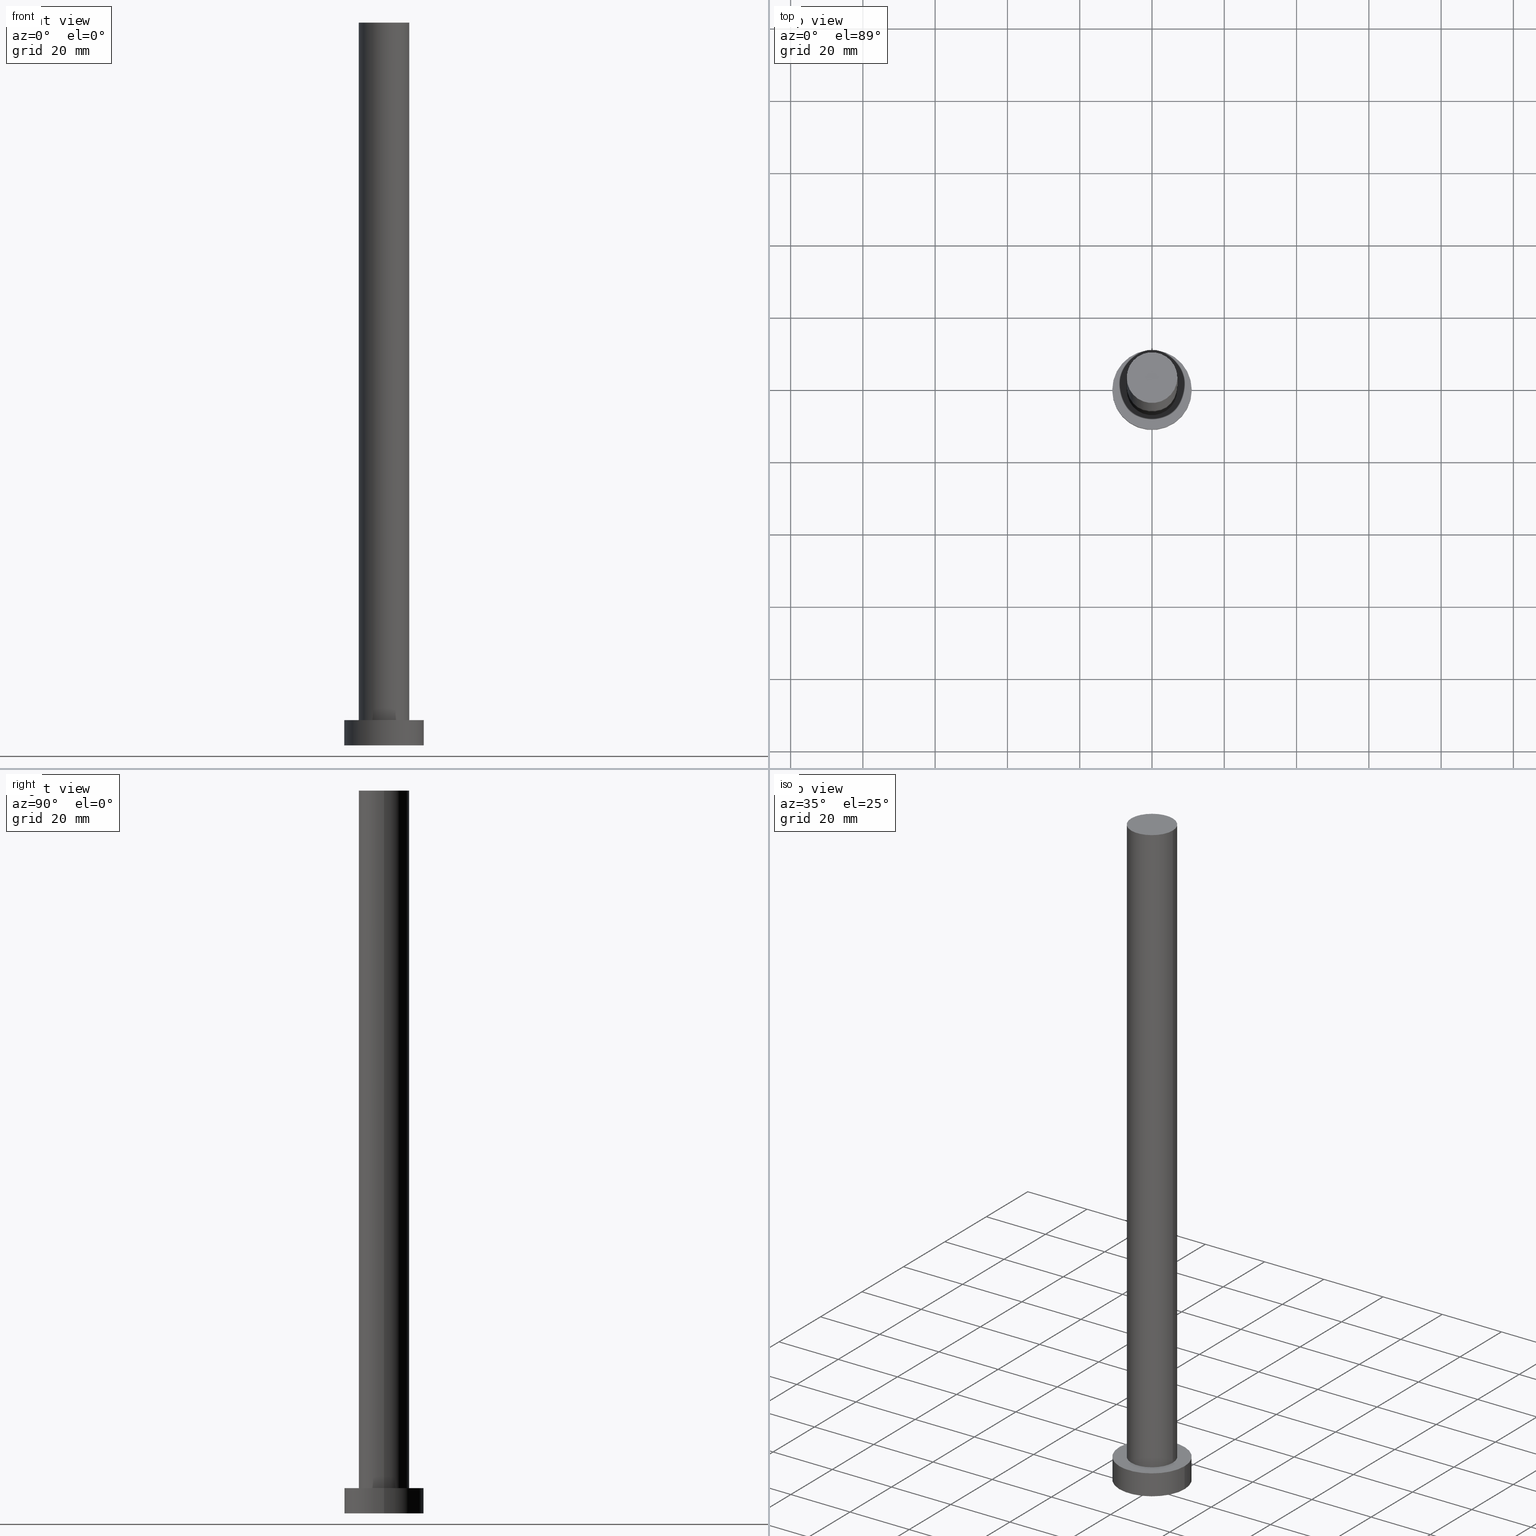
[diagram: canonical four-view strip — front | top / right | iso, engineering-drawing reading convention]
A machine part, canonical four-view strip (front | top / right | iso — engineering-drawing reading convention). The complete STEP part file that produces these views, byte-faithful:
ISO-10303-21;
HEADER;
FILE_DESCRIPTION (( 'STEP AP203' ),
    '1' );
FILE_NAME ('63ed.STEP',
    '2023-02-13T09:16:48',
    ( '' ),
    ( '' ),
    'SwSTEP 2.0',
    'SolidWorks 2019',
    '' );
FILE_SCHEMA (( 'CONFIG_CONTROL_DESIGN' ));
ENDSEC;

DATA;
#1 = APPROVAL_ROLE ( '' ) ;
#2 = EDGE_CURVE ( 'NONE', #127, #113, #91, .T. ) ;
#3 = PERSON_AND_ORGANIZATION ( #218, #195 ) ;
#4 = APPROVAL_STATUS ( 'not_yet_approved' ) ;
#5 = CALENDAR_DATE ( 2023, 13, 2 ) ;
#6 = CC_DESIGN_APPROVAL ( #55, ( #226 ) ) ;
#7 = CARTESIAN_POINT ( 'NONE',  ( 0.000000000000000000, 0.000000000000000000, 200.0000000000000000 ) ) ;
#8 = VERTEX_POINT ( 'NONE', #11 ) ;
#9 = PRODUCT_RELATED_PRODUCT_CATEGORY ( 'detail', '', ( #234 ) ) ;
#10 = CIRCLE ( 'NONE', #223, 7.000000000000000000 ) ;
#11 = CARTESIAN_POINT ( 'NONE',  ( 7.000000000000000000, 8.572527594031473190E-16, 7.000000000000000000 ) ) ;
#12 = ORIENTED_EDGE ( 'NONE', *, *, #254, .F. ) ;
#13 = PLANE ( 'NONE',  #202 ) ;
#14 = EDGE_CURVE ( 'NONE', #206, #252, #129, .T. ) ;
#15 = ORIENTED_EDGE ( 'NONE', *, *, #171, .F. ) ;
#16 = VECTOR ( 'NONE', #152, 1000.000000000000000 ) ;
#17 = DIRECTION ( 'NONE',  ( -1.000000000000000000, 0.000000000000000000, 0.000000000000000000 ) ) ;
#18 = MECHANICAL_CONTEXT ( 'NONE', #229, 'mechanical' ) ;
#19 = AXIS2_PLACEMENT_3D ( 'NONE', #251, #114, #109 ) ;
#20 = MANIFOLD_SOLID_BREP ( 'P�idat vysunut�m3', #31 ) ;
#21 = EDGE_CURVE ( 'NONE', #252, #32, #111, .T. ) ;
#22 = APPROVAL_DATE_TIME ( #54, #77 ) ;
#23 = CALENDAR_DATE ( 2023, 13, 2 ) ;
#24 = EDGE_LOOP ( 'NONE', ( #34, #156 ) ) ;
#25 = ADVANCED_FACE ( 'NONE', ( #230 ), #13, .F. ) ;
#26 = FACE_OUTER_BOUND ( 'NONE', #248, .T. ) ;
#27 = ORIENTED_EDGE ( 'NONE', *, *, #254, .T. ) ;
#28 = DIRECTION ( 'NONE',  ( 0.000000000000000000, 0.000000000000000000, 1.000000000000000000 ) ) ;
#29 = ORIENTED_EDGE ( 'NONE', *, *, #21, .F. ) ;
#30 = DIRECTION ( 'NONE',  ( 1.000000000000000000, 0.000000000000000000, 0.000000000000000000 ) ) ;
#31 = CLOSED_SHELL ( 'NONE', ( #134, #85, #243, #104, #25, #51, #247 ) ) ;
#32 = VERTEX_POINT ( 'NONE', #166 ) ;
#33 =( NAMED_UNIT ( * ) PLANE_ANGLE_UNIT ( ) SI_UNIT ( $, .RADIAN. ) );
#34 = ORIENTED_EDGE ( 'NONE', *, *, #167, .T. ) ;
#35 = CARTESIAN_POINT ( 'NONE',  ( 0.000000000000000000, 0.000000000000000000, 200.0000000000000000 ) ) ;
#36 = LOCAL_TIME ( 10, 16, 48.00000000000000000, #215 ) ;
#37 = APPROVAL_DATE_TIME ( #164, #64 ) ;
#38 = DATE_TIME_ROLE ( 'creation_date' ) ;
#39 = CC_DESIGN_PERSON_AND_ORGANIZATION_ASSIGNMENT ( #3, #76, ( #226 ) ) ;
#40 = LOCAL_TIME ( 10, 16, 48.00000000000000000, #112 ) ;
#41 = EDGE_CURVE ( 'NONE', #32, #53, #43, .T. ) ;
#42 = DIRECTION ( 'NONE',  ( -1.000000000000000000, 0.000000000000000000, 0.000000000000000000 ) ) ;
#43 = CIRCLE ( 'NONE', #59, 11.00000000000000000 ) ;
#44 = DIRECTION ( 'NONE',  ( 1.000000000000000000, 0.000000000000000000, 0.000000000000000000 ) ) ;
#45 = APPROVAL_PERSON_ORGANIZATION ( #49, #77, #130 ) ;
#46 = CARTESIAN_POINT ( 'NONE',  ( -11.00000000000000000, 0.000000000000000000, 7.000000000000000000 ) ) ;
#47 = APPLICATION_PROTOCOL_DEFINITION ( 'international standard', 'config_control_design', 1994, #229 ) ;
#48 = ORIENTED_EDGE ( 'NONE', *, *, #153, .T. ) ;
#49 = PERSON_AND_ORGANIZATION ( #218, #195 ) ;
#50 = VECTOR ( 'NONE', #132, 1000.000000000000000 ) ;
#51 = ADVANCED_FACE ( 'NONE', ( #58 ), #101, .T. ) ;
#52 = CIRCLE ( 'NONE', #95, 7.000000000000000000 ) ;
#53 = VERTEX_POINT ( 'NONE', #122 ) ;
#54 = DATE_AND_TIME ( #196, #40 ) ;
#55 = APPROVAL ( #4, 'NEUR�EN�' ) ;
#56 = PERSON_AND_ORGANIZATION_ROLE ( 'design_supplier' ) ;
#57 = APPROVAL_STATUS ( 'not_yet_approved' ) ;
#58 = FACE_OUTER_BOUND ( 'NONE', #98, .T. ) ;
#59 = AXIS2_PLACEMENT_3D ( 'NONE', #169, #181, #44 ) ;
#60 = DIRECTION ( 'NONE',  ( 1.000000000000000000, 0.000000000000000000, 0.000000000000000000 ) ) ;
#61 =( GEOMETRIC_REPRESENTATION_CONTEXT ( 3 ) GLOBAL_UNCERTAINTY_ASSIGNED_CONTEXT ( ( #107 ) ) GLOBAL_UNIT_ASSIGNED_CONTEXT ( ( #227, #33, #191 ) ) REPRESENTATION_CONTEXT ( 'NONE', 'WORKASPACE' ) );
#62 = FACE_OUTER_BOUND ( 'NONE', #120, .T. ) ;
#63 = CYLINDRICAL_SURFACE ( 'NONE', #149, 7.000000000000000000 ) ;
#64 = APPROVAL ( #57, 'NEUR�EN�' ) ;
#65 = AXIS2_PLACEMENT_3D ( 'NONE', #246, #211, #17 ) ;
#66 = LOCAL_TIME ( 10, 16, 48.00000000000000000, #214 ) ;
#67 = PLANE ( 'NONE',  #140 ) ;
#68 = ORIENTED_EDGE ( 'NONE', *, *, #225, .T. ) ;
#69 = ORIENTED_EDGE ( 'NONE', *, *, #2, .T. ) ;
#70 = LINE ( 'NONE', #86, #100 ) ;
#71 = ORIENTED_EDGE ( 'NONE', *, *, #167, .F. ) ;
#72 = DIRECTION ( 'NONE',  ( 0.000000000000000000, 0.000000000000000000, 1.000000000000000000 ) ) ;
#73 = PERSON_AND_ORGANIZATION_ROLE ( 'design_owner' ) ;
#74 = DIRECTION ( 'NONE',  ( 0.000000000000000000, 0.000000000000000000, 1.000000000000000000 ) ) ;
#75 = ORIENTED_EDGE ( 'NONE', *, *, #186, .F. ) ;
#76 = PERSON_AND_ORGANIZATION_ROLE ( 'creator' ) ;
#77 = APPROVAL ( #174, 'NEUR�EN�' ) ;
#78 = CALENDAR_DATE ( 2023, 13, 2 ) ;
#79 = PERSON_AND_ORGANIZATION ( #218, #195 ) ;
#80 = CC_DESIGN_APPROVAL ( #77, ( #124 ) ) ;
#81 = DIRECTION ( 'NONE',  ( -1.000000000000000000, 0.000000000000000000, 0.000000000000000000 ) ) ;
#82 = ORIENTED_EDGE ( 'NONE', *, *, #116, .F. ) ;
#83 = CARTESIAN_POINT ( 'NONE',  ( -7.000000000000000000, 0.000000000000000000, 7.000000000000000000 ) ) ;
#84 = DIRECTION ( 'NONE',  ( -0.000000000000000000, -0.000000000000000000, -1.000000000000000000 ) ) ;
#85 = ADVANCED_FACE ( 'NONE', ( #26 ), #200, .T. ) ;
#86 = CARTESIAN_POINT ( 'NONE',  ( -11.00000000000000000, 0.000000000000000000, 7.000000000000000000 ) ) ;
#87 = ORIENTED_EDGE ( 'NONE', *, *, #163, .F. ) ;
#88 = LINE ( 'NONE', #207, #16 ) ;
#89 = CC_DESIGN_SECURITY_CLASSIFICATION ( #180, ( #226 ) ) ;
#90 = DIRECTION ( 'NONE',  ( -0.000000000000000000, -0.000000000000000000, -1.000000000000000000 ) ) ;
#91 = LINE ( 'NONE', #188, #50 ) ;
#92 = DIRECTION ( 'NONE',  ( 1.000000000000000000, 0.000000000000000000, 0.000000000000000000 ) ) ;
#93 = EDGE_LOOP ( 'NONE', ( #228, #82 ) ) ;
#94 = CARTESIAN_POINT ( 'NONE',  ( 7.000000000000000000, 8.572527594031473190E-16, 200.0000000000000000 ) ) ;
#95 = AXIS2_PLACEMENT_3D ( 'NONE', #128, #209, #30 ) ;
#96 = PRODUCT_DEFINITION_SHAPE ( 'NONE', 'NONE',  #124 ) ;
#97 = VECTOR ( 'NONE', #90, 1000.000000000000000 ) ;
#98 = EDGE_LOOP ( 'NONE', ( #136, #71, #69, #48 ) ) ;
#99 = PERSON_AND_ORGANIZATION ( #218, #195 ) ;
#100 = VECTOR ( 'NONE', #232, 1000.000000000000000 ) ;
#101 = CYLINDRICAL_SURFACE ( 'NONE', #182, 7.000000000000000000 ) ;
#102 = CC_DESIGN_APPROVAL ( #64, ( #180 ) ) ;
#103 = DIRECTION ( 'NONE',  ( 1.000000000000000000, 0.000000000000000000, 0.000000000000000000 ) ) ;
#104 = ADVANCED_FACE ( 'NONE', ( #141, #183 ), #165, .T. ) ;
#105 = DIRECTION ( 'NONE',  ( 0.000000000000000000, 0.000000000000000000, 1.000000000000000000 ) ) ;
#106 = ORIENTED_EDGE ( 'NONE', *, *, #163, .T. ) ;
#107 = UNCERTAINTY_MEASURE_WITH_UNIT (LENGTH_MEASURE( 1.000000000000000082E-05 ), #227, 'distance_accuracy_value', 'NONE');
#108 = ORIENTED_EDGE ( 'NONE', *, *, #14, .T. ) ;
#109 = DIRECTION ( 'NONE',  ( 1.000000000000000000, 0.000000000000000000, 0.000000000000000000 ) ) ;
#110 = CC_DESIGN_DATE_AND_TIME_ASSIGNMENT ( #158, #138, ( #180 ) ) ;
#111 = LINE ( 'NONE', #193, #97 ) ;
#112 = COORDINATED_UNIVERSAL_TIME_OFFSET ( 1, 0, .AHEAD. ) ;
#113 = VERTEX_POINT ( 'NONE', #83 ) ;
#114 = DIRECTION ( 'NONE',  ( 0.000000000000000000, 0.000000000000000000, 1.000000000000000000 ) ) ;
#115 = AXIS2_PLACEMENT_3D ( 'NONE', #123, #201, #103 ) ;
#116 = EDGE_CURVE ( 'NONE', #8, #113, #208, .T. ) ;
#117 = LOCAL_TIME ( 10, 16, 48.00000000000000000, #216 ) ;
#118 = APPROVAL_DATE_TIME ( #239, #55 ) ;
#119 = PERSON_AND_ORGANIZATION_ROLE ( 'classification_officer' ) ;
#120 = EDGE_LOOP ( 'NONE', ( #15, #68, #150, #159 ) ) ;
#121 = CARTESIAN_POINT ( 'NONE',  ( 0.000000000000000000, 0.000000000000000000, 7.000000000000000000 ) ) ;
#122 = CARTESIAN_POINT ( 'NONE',  ( -11.00000000000000000, 0.000000000000000000, 0.000000000000000000 ) ) ;
#123 = CARTESIAN_POINT ( 'NONE',  ( 0.000000000000000000, 0.000000000000000000, 7.000000000000000000 ) ) ;
#124 = PRODUCT_DEFINITION ( 'NEZN�M�', '', #226, #145 ) ;
#125 = CARTESIAN_POINT ( 'NONE',  ( 0.000000000000000000, 0.000000000000000000, 7.000000000000000000 ) ) ;
#126 = AXIS2_PLACEMENT_3D ( 'NONE', #233, #74, #135 ) ;
#127 = VERTEX_POINT ( 'NONE', #168 ) ;
#128 = CARTESIAN_POINT ( 'NONE',  ( 0.000000000000000000, 0.000000000000000000, 200.0000000000000000 ) ) ;
#129 = CIRCLE ( 'NONE', #176, 11.00000000000000000 ) ;
#130 = APPROVAL_ROLE ( '' ) ;
#131 = DIRECTION ( 'NONE',  ( 1.000000000000000000, 0.000000000000000000, 0.000000000000000000 ) ) ;
#132 = DIRECTION ( 'NONE',  ( -0.000000000000000000, -0.000000000000000000, -1.000000000000000000 ) ) ;
#133 = CYLINDRICAL_SURFACE ( 'NONE', #65, 11.00000000000000000 ) ;
#134 = ADVANCED_FACE ( 'NONE', ( #62 ), #63, .T. ) ;
#135 = DIRECTION ( 'NONE',  ( 1.000000000000000000, 0.000000000000000000, 0.000000000000000000 ) ) ;
#136 = ORIENTED_EDGE ( 'NONE', *, *, #225, .F. ) ;
#137 = APPROVAL_ROLE ( '' ) ;
#138 = DATE_TIME_ROLE ( 'classification_date' ) ;
#139 = COORDINATED_UNIVERSAL_TIME_OFFSET ( 1, 0, .AHEAD. ) ;
#140 = AXIS2_PLACEMENT_3D ( 'NONE', #253, #72, #146 ) ;
#141 = FACE_BOUND ( 'NONE', #93, .T. ) ;
#142 = DIRECTION ( 'NONE',  ( -0.000000000000000000, -0.000000000000000000, -1.000000000000000000 ) ) ;
#143 = CARTESIAN_POINT ( 'NONE',  ( 0.000000000000000000, 0.000000000000000000, 200.0000000000000000 ) ) ;
#144 = CIRCLE ( 'NONE', #212, 11.00000000000000000 ) ;
#145 = DESIGN_CONTEXT ( 'detailed design', #240, 'design' ) ;
#146 = DIRECTION ( 'NONE',  ( 1.000000000000000000, 0.000000000000000000, -0.000000000000000000 ) ) ;
#147 = CARTESIAN_POINT ( 'NONE',  ( 11.00000000000000000, 1.347111479062088405E-15, 7.000000000000000000 ) ) ;
#148 = EDGE_LOOP ( 'NONE', ( #75, #155 ) ) ;
#149 = AXIS2_PLACEMENT_3D ( 'NONE', #143, #142, #42 ) ;
#150 = ORIENTED_EDGE ( 'NONE', *, *, #116, .T. ) ;
#151 = CARTESIAN_POINT ( 'NONE',  ( 0.000000000000000000, 0.000000000000000000, 0.000000000000000000 ) ) ;
#152 = DIRECTION ( 'NONE',  ( -0.000000000000000000, -0.000000000000000000, -1.000000000000000000 ) ) ;
#153 = EDGE_CURVE ( 'NONE', #113, #8, #217, .T. ) ;
#154 = DIRECTION ( 'NONE',  ( 0.000000000000000000, 0.000000000000000000, 1.000000000000000000 ) ) ;
#155 = ORIENTED_EDGE ( 'NONE', *, *, #41, .F. ) ;
#156 = ORIENTED_EDGE ( 'NONE', *, *, #171, .T. ) ;
#157 = CC_DESIGN_DATE_AND_TIME_ASSIGNMENT ( #221, #38, ( #124 ) ) ;
#158 = DATE_AND_TIME ( #5, #66 ) ;
#159 = ORIENTED_EDGE ( 'NONE', *, *, #2, .F. ) ;
#160 = PERSON_AND_ORGANIZATION_ROLE ( 'creator' ) ;
#161 = LOCAL_TIME ( 10, 16, 48.00000000000000000, #139 ) ;
#162 = CALENDAR_DATE ( 2023, 13, 2 ) ;
#163 = EDGE_CURVE ( 'NONE', #252, #206, #144, .T. ) ;
#164 = DATE_AND_TIME ( #162, #161 ) ;
#165 = PLANE ( 'NONE',  #197 ) ;
#166 = CARTESIAN_POINT ( 'NONE',  ( 11.00000000000000000, 1.347111479062088405E-15, 0.000000000000000000 ) ) ;
#167 = EDGE_CURVE ( 'NONE', #127, #245, #52, .T. ) ;
#168 = CARTESIAN_POINT ( 'NONE',  ( -7.000000000000000000, 0.000000000000000000, 200.0000000000000000 ) ) ;
#169 = CARTESIAN_POINT ( 'NONE',  ( 0.000000000000000000, 0.000000000000000000, 0.000000000000000000 ) ) ;
#170 = EDGE_LOOP ( 'NONE', ( #29, #175, #27, #185 ) ) ;
#171 = EDGE_CURVE ( 'NONE', #245, #127, #10, .T. ) ;
#172 = DIRECTION ( 'NONE',  ( 0.000000000000000000, 0.000000000000000000, 1.000000000000000000 ) ) ;
#173 = DIRECTION ( 'NONE',  ( 0.000000000000000000, 0.000000000000000000, 1.000000000000000000 ) ) ;
#174 = APPROVAL_STATUS ( 'not_yet_approved' ) ;
#175 = ORIENTED_EDGE ( 'NONE', *, *, #14, .F. ) ;
#176 = AXIS2_PLACEMENT_3D ( 'NONE', #190, #172, #131 ) ;
#177 = CIRCLE ( 'NONE', #19, 11.00000000000000000 ) ;
#178 = PERSON_AND_ORGANIZATION ( #218, #195 ) ;
#179 = APPROVAL_PERSON_ORGANIZATION ( #178, #55, #137 ) ;
#180 = SECURITY_CLASSIFICATION ( '', '', #219 ) ;
#181 = DIRECTION ( 'NONE',  ( 0.000000000000000000, 0.000000000000000000, 1.000000000000000000 ) ) ;
#182 = AXIS2_PLACEMENT_3D ( 'NONE', #7, #198, #222 ) ;
#183 = FACE_OUTER_BOUND ( 'NONE', #250, .T. ) ;
#184 = DIRECTION ( 'NONE',  ( 1.000000000000000000, 0.000000000000000000, 0.000000000000000000 ) ) ;
#185 = ORIENTED_EDGE ( 'NONE', *, *, #186, .T. ) ;
#186 = EDGE_CURVE ( 'NONE', #53, #32, #177, .T. ) ;
#187 = FACE_OUTER_BOUND ( 'NONE', #24, .T. ) ;
#188 = CARTESIAN_POINT ( 'NONE',  ( -7.000000000000000000, 0.000000000000000000, 200.0000000000000000 ) ) ;
#189 = FACE_OUTER_BOUND ( 'NONE', #170, .T. ) ;
#190 = CARTESIAN_POINT ( 'NONE',  ( 0.000000000000000000, 0.000000000000000000, 7.000000000000000000 ) ) ;
#191 =( NAMED_UNIT ( * ) SI_UNIT ( $, .STERADIAN. ) SOLID_ANGLE_UNIT ( ) );
#192 = CC_DESIGN_PERSON_AND_ORGANIZATION_ASSIGNMENT ( #99, #119, ( #180 ) ) ;
#193 = CARTESIAN_POINT ( 'NONE',  ( 11.00000000000000000, 1.347111479062088405E-15, 7.000000000000000000 ) ) ;
#194 = AXIS2_PLACEMENT_3D ( 'NONE', #242, #28, #60 ) ;
#195 = ORGANIZATION ( 'NEUR�EN�', 'NEUR�EN�', '' ) ;
#196 = CALENDAR_DATE ( 2023, 13, 2 ) ;
#197 = AXIS2_PLACEMENT_3D ( 'NONE', #121, #105, #199 ) ;
#198 = DIRECTION ( 'NONE',  ( -0.000000000000000000, -0.000000000000000000, -1.000000000000000000 ) ) ;
#199 = DIRECTION ( 'NONE',  ( 1.000000000000000000, 0.000000000000000000, -0.000000000000000000 ) ) ;
#200 = CYLINDRICAL_SURFACE ( 'NONE', #241, 11.00000000000000000 ) ;
#201 = DIRECTION ( 'NONE',  ( 0.000000000000000000, 0.000000000000000000, 1.000000000000000000 ) ) ;
#202 = AXIS2_PLACEMENT_3D ( 'NONE', #151, #173, #224 ) ;
#203 = ADVANCED_BREP_SHAPE_REPRESENTATION ( '63ed', ( #20, #126 ), #61 ) ;
#204 = DIRECTION ( 'NONE',  ( 0.000000000000000000, 0.000000000000000000, 1.000000000000000000 ) ) ;
#205 = CC_DESIGN_PERSON_AND_ORGANIZATION_ASSIGNMENT ( #255, #73, ( #234 ) ) ;
#206 = VERTEX_POINT ( 'NONE', #46 ) ;
#207 = CARTESIAN_POINT ( 'NONE',  ( 7.000000000000000000, 8.572527594031473190E-16, 200.0000000000000000 ) ) ;
#208 = CIRCLE ( 'NONE', #194, 7.000000000000000000 ) ;
#209 = DIRECTION ( 'NONE',  ( 0.000000000000000000, 0.000000000000000000, 1.000000000000000000 ) ) ;
#210 = CC_DESIGN_PERSON_AND_ORGANIZATION_ASSIGNMENT ( #236, #160, ( #124 ) ) ;
#211 = DIRECTION ( 'NONE',  ( -0.000000000000000000, -0.000000000000000000, -1.000000000000000000 ) ) ;
#212 = AXIS2_PLACEMENT_3D ( 'NONE', #125, #204, #184 ) ;
#213 = APPROVAL_PERSON_ORGANIZATION ( #79, #64, #1 ) ;
#214 = COORDINATED_UNIVERSAL_TIME_OFFSET ( 1, 0, .AHEAD. ) ;
#215 = COORDINATED_UNIVERSAL_TIME_OFFSET ( 1, 0, .AHEAD. ) ;
#216 = COORDINATED_UNIVERSAL_TIME_OFFSET ( 1, 0, .AHEAD. ) ;
#217 = CIRCLE ( 'NONE', #115, 7.000000000000000000 ) ;
#218 = PERSON ( 'NEUR�EN�', 'NEUR�EN�', 'NEUR�EN�', ('NEUR�EN�'), ('NEUR�EN�'), ('NEUR�EN�') ) ;
#219 = SECURITY_CLASSIFICATION_LEVEL ( 'unclassified' ) ;
#220 = SHAPE_DEFINITION_REPRESENTATION ( #96, #203 ) ;
#221 = DATE_AND_TIME ( #23, #36 ) ;
#222 = DIRECTION ( 'NONE',  ( -1.000000000000000000, 0.000000000000000000, 0.000000000000000000 ) ) ;
#223 = AXIS2_PLACEMENT_3D ( 'NONE', #35, #154, #92 ) ;
#224 = DIRECTION ( 'NONE',  ( 1.000000000000000000, 0.000000000000000000, -0.000000000000000000 ) ) ;
#225 = EDGE_CURVE ( 'NONE', #245, #8, #88, .T. ) ;
#226 = PRODUCT_DEFINITION_FORMATION_WITH_SPECIFIED_SOURCE ( 'LIBOVOLN�', '', #234, .NOT_KNOWN. ) ;
#227 =( LENGTH_UNIT ( ) NAMED_UNIT ( * ) SI_UNIT ( .MILLI., .METRE. ) );
#228 = ORIENTED_EDGE ( 'NONE', *, *, #153, .F. ) ;
#229 = APPLICATION_CONTEXT ( 'configuration controlled 3d designs of mechanical parts and assemblies' ) ;
#230 = FACE_OUTER_BOUND ( 'NONE', #148, .T. ) ;
#231 = ORIENTED_EDGE ( 'NONE', *, *, #21, .T. ) ;
#232 = DIRECTION ( 'NONE',  ( -0.000000000000000000, -0.000000000000000000, -1.000000000000000000 ) ) ;
#233 = CARTESIAN_POINT ( 'NONE',  ( 0.000000000000000000, 0.000000000000000000, 0.000000000000000000 ) ) ;
#234 = PRODUCT ( '63ed', '63ed', '', ( #18 ) ) ;
#235 = APPLICATION_PROTOCOL_DEFINITION ( 'international standard', 'config_control_design', 1994, #240 ) ;
#236 = PERSON_AND_ORGANIZATION ( #218, #195 ) ;
#237 = CC_DESIGN_PERSON_AND_ORGANIZATION_ASSIGNMENT ( #238, #56, ( #226 ) ) ;
#238 = PERSON_AND_ORGANIZATION ( #218, #195 ) ;
#239 = DATE_AND_TIME ( #78, #117 ) ;
#240 = APPLICATION_CONTEXT ( 'configuration controlled 3d designs of mechanical parts and assemblies' ) ;
#241 = AXIS2_PLACEMENT_3D ( 'NONE', #244, #84, #81 ) ;
#242 = CARTESIAN_POINT ( 'NONE',  ( 0.000000000000000000, 0.000000000000000000, 7.000000000000000000 ) ) ;
#243 = ADVANCED_FACE ( 'NONE', ( #189 ), #133, .T. ) ;
#244 = CARTESIAN_POINT ( 'NONE',  ( 0.000000000000000000, 0.000000000000000000, 7.000000000000000000 ) ) ;
#245 = VERTEX_POINT ( 'NONE', #94 ) ;
#246 = CARTESIAN_POINT ( 'NONE',  ( 0.000000000000000000, 0.000000000000000000, 7.000000000000000000 ) ) ;
#247 = ADVANCED_FACE ( 'NONE', ( #187 ), #67, .T. ) ;
#248 = EDGE_LOOP ( 'NONE', ( #87, #231, #249, #12 ) ) ;
#249 = ORIENTED_EDGE ( 'NONE', *, *, #41, .T. ) ;
#250 = EDGE_LOOP ( 'NONE', ( #108, #106 ) ) ;
#251 = CARTESIAN_POINT ( 'NONE',  ( 0.000000000000000000, 0.000000000000000000, 0.000000000000000000 ) ) ;
#252 = VERTEX_POINT ( 'NONE', #147 ) ;
#253 = CARTESIAN_POINT ( 'NONE',  ( 0.000000000000000000, 0.000000000000000000, 200.0000000000000000 ) ) ;
#254 = EDGE_CURVE ( 'NONE', #206, #53, #70, .T. ) ;
#255 = PERSON_AND_ORGANIZATION ( #218, #195 ) ;
ENDSEC;
END-ISO-10303-21;
